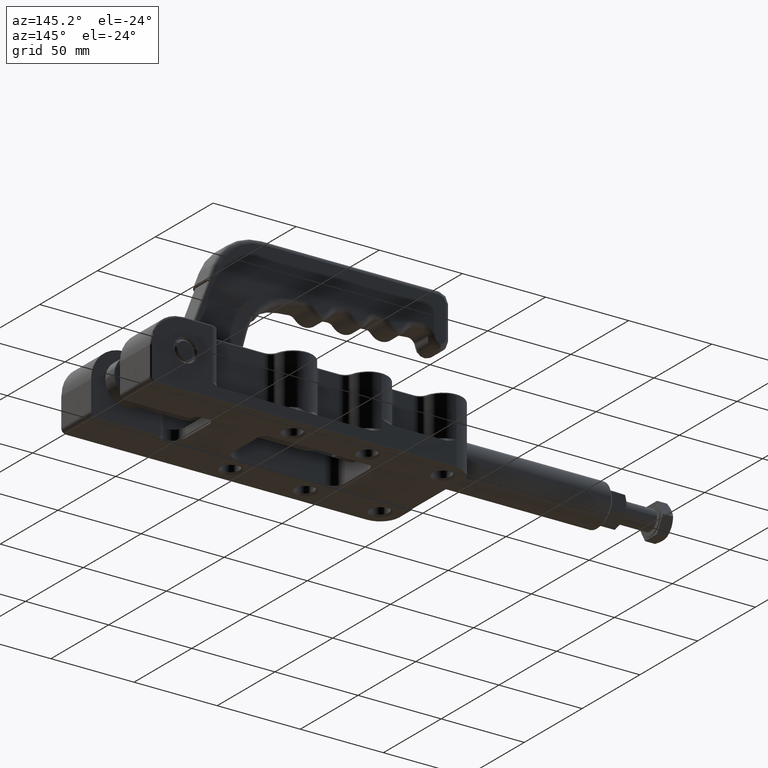
[diagram: clean part render]
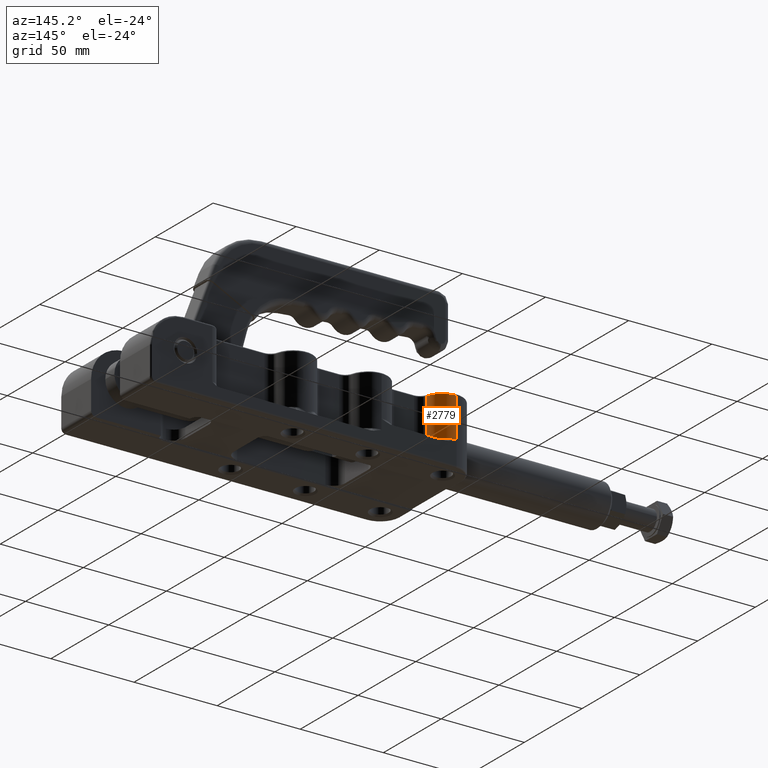
[diagram: same view with one face highlighted and labeled with its STEP entity id]
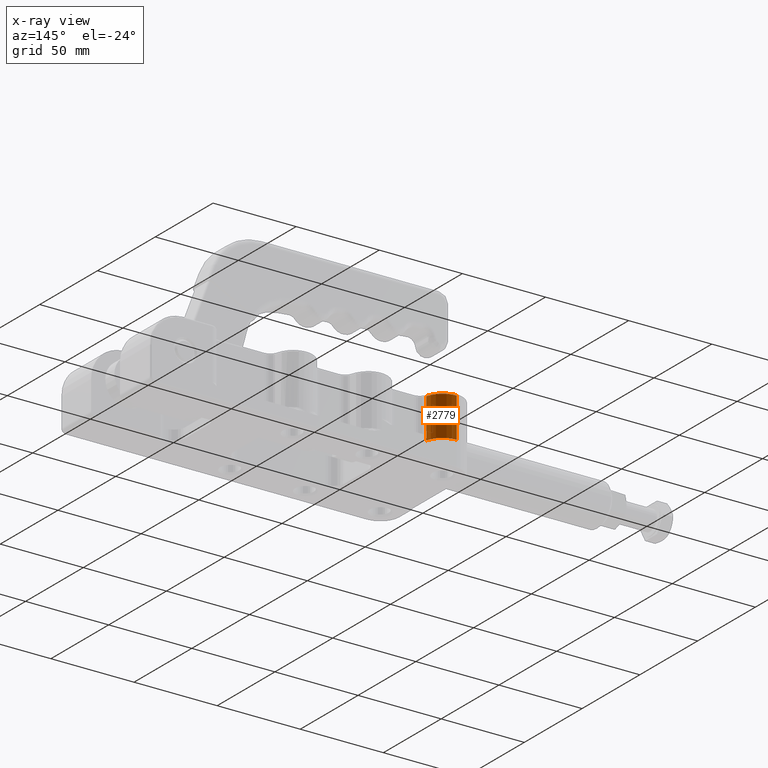
[diagram: x-ray of the same camera — body ghosted, the highlighted face saturated]
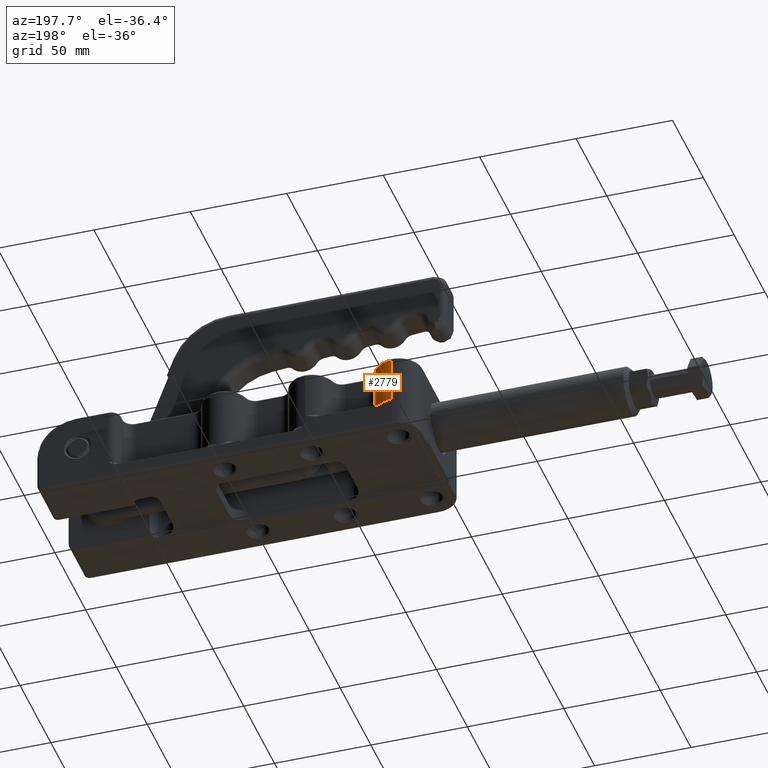
[diagram: same view with one face highlighted and labeled with its STEP entity id]
A machine part, auxiliary view. The second image highlights one B-rep face of the part: STEP entity #2779.
The next image is the same camera in x-ray: the body ghosted, the highlighted face saturated — about 0% of this face is hidden behind the body in this view.
A second angle (auxiliary view) of the same face is appended — the face is thin or edge-on in the first view.
In plain terms, the highlighted cylindrical surface (edge-blend (fillet) strip) has radius 12 mm, axis along (0, 0, 1).
Its self-contained STEP definition (entity closure, byte-faithful):
#2335=CARTESIAN_POINT('',(10.993680172835569,94.933960241156186,15.000000000000007));
#2336=VERTEX_POINT('',#2335);
#2337=CARTESIAN_POINT('',(10.993680172835598,94.933960241156171,39.0));
#2338=VERTEX_POINT('',#2337);
#2339=CARTESIAN_POINT('',(10.993680172835569,94.933960241156186,15.000000000000007));
#2340=DIRECTION('',(0.0,0.0,1.0));
#2341=VECTOR('',#2340,23.999999999999993);
#2342=LINE('',#2339,#2341);
#2343=EDGE_CURVE('',#2336,#2338,#2342,.T.);
#2447=CARTESIAN_POINT('',(22.656523630845822,85.758510200697842,15.000000000000009));
#2448=VERTEX_POINT('',#2447);
#2542=CARTESIAN_POINT('',(10.993680172835589,82.933960241156171,15.000000000000007));
#2543=DIRECTION('',(0.0,0.0,-1.0));
#2544=DIRECTION('',(0.618312557168646,0.785932300931556,0.0));
#2545=AXIS2_PLACEMENT_3D('',#2542,#2543,#2544);
#2546=CIRCLE('',#2545,12.000000000000002);
#2547=EDGE_CURVE('',#2336,#2448,#2546,.T.);
#2743=CARTESIAN_POINT('',(22.656523630845822,85.758510200697842,39.0));
#2744=VERTEX_POINT('',#2743);
#2745=CARTESIAN_POINT('',(22.656523630845822,85.758510200697842,39.0));
#2746=DIRECTION('',(0.0,0.0,-1.0));
#2747=VECTOR('',#2746,23.999999999999993);
#2748=LINE('',#2745,#2747);
#2749=EDGE_CURVE('',#2744,#2448,#2748,.T.);
#2762=CARTESIAN_POINT('',(10.993680172835589,82.933960241156171,0.0));
#2763=DIRECTION('',(0.0,0.0,1.0));
#2764=DIRECTION('',(0.0,1.0,0.0));
#2765=AXIS2_PLACEMENT_3D('',#2762,#2763,#2764);
#2766=CYLINDRICAL_SURFACE('',#2765,12.000000000000002);
#2767=ORIENTED_EDGE('',*,*,#2343,.T.);
#2768=CARTESIAN_POINT('',(10.993680172835589,82.933960241156171,39.0));
#2769=DIRECTION('',(0.0,0.0,1.0));
#2770=DIRECTION('',(-0.118525057475506,0.992951061608994,0.0));
#2771=AXIS2_PLACEMENT_3D('',#2768,#2769,#2770);
#2772=CIRCLE('',#2771,12.000000000000002);
#2773=EDGE_CURVE('',#2744,#2338,#2772,.T.);
#2774=ORIENTED_EDGE('',*,*,#2773,.F.);
#2775=ORIENTED_EDGE('',*,*,#2749,.T.);
#2776=ORIENTED_EDGE('',*,*,#2547,.F.);
#2777=EDGE_LOOP('',(#2767,#2774,#2775,#2776));
#2778=FACE_OUTER_BOUND('',#2777,.T.);
#2779=ADVANCED_FACE('',(#2778),#2766,.T.);